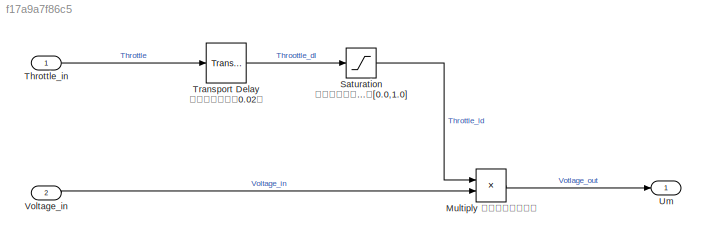
MODEL slx_f17a9a7f86c5
KIND model
CONFIG AbsTol = auto
CONFIG EnableMultiTasking = off
CONFIG FixedStep = auto
CONFIG MaxStep = auto
CONFIG MinStep = auto
CONFIG RelTol = 1e-3
CONFIG SampleTimeConstraint = Unconstrained
CONFIG Solver = FixedStepAuto
CONFIG SolverName = FixedStepAuto
CONFIG StartTime = 0.0
CONFIG StopTime = 10.0
BLOCK [Product] Multiply 线性调节输出电压
  InputSameDT = off
  OutDataTypeStr = Inherit: Inherit via internal rule
  Ports = [2, 1]
  RndMeth = Floor
  SaturateOnIntegerOverflow = off
BLOCK [Saturate] Saturation 限制油门最大最小值[0.0,1.0]
  InputPortMap = u0
  LowerLimit = 0.0
  Ports = [1, 1]
  UpperLimit = 1.0
BLOCK [Inport] Throttle_in
  IconDisplay = Port number
  PortDimensions = 4
BLOCK [TransportDelay] Transport Delay 模拟电调纯延时0.02秒
  DelayTime = 0.02
  Ports = [1, 1]
BLOCK [Outport] Um
  IconDisplay = Port number
BLOCK [Inport] Voltage_in
  IconDisplay = Port number
  Port = 2
LINE Multiply 线性调节输出电压:1 -> Um:1
LINE Saturation 限制油门最大最小值[0.0,1.0]:1 -> Multiply 线性调节输出电压:1
LINE Throttle_in:1 -> Transport Delay 模拟电调纯延时0.02秒:1
LINE Transport Delay 模拟电调纯延时0.02秒:1 -> Saturation 限制油门最大最小值[0.0,1.0]:1
LINE Voltage_in:1 -> Multiply 线性调节输出电压:2
